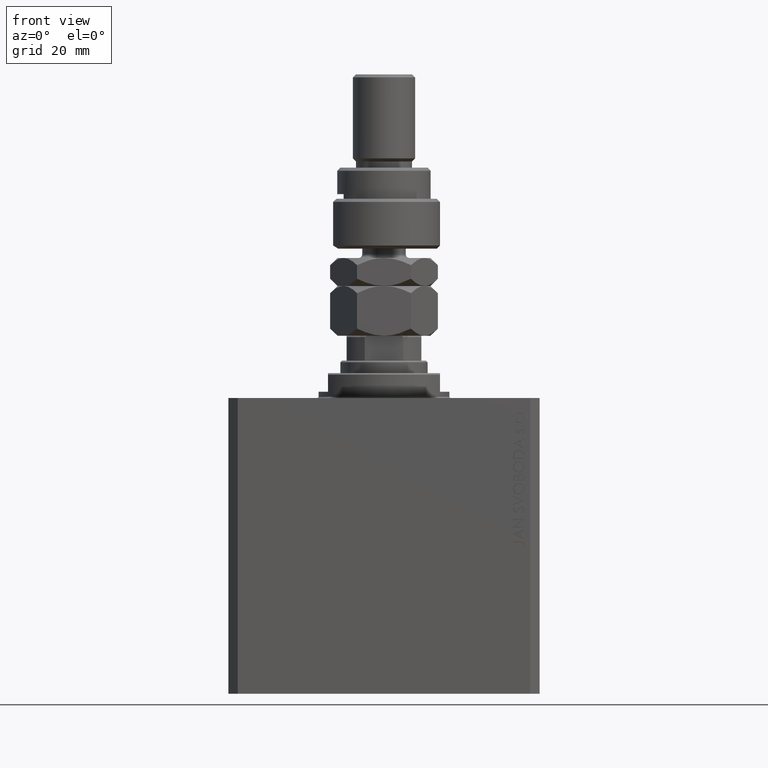
[diagram: clean part render]
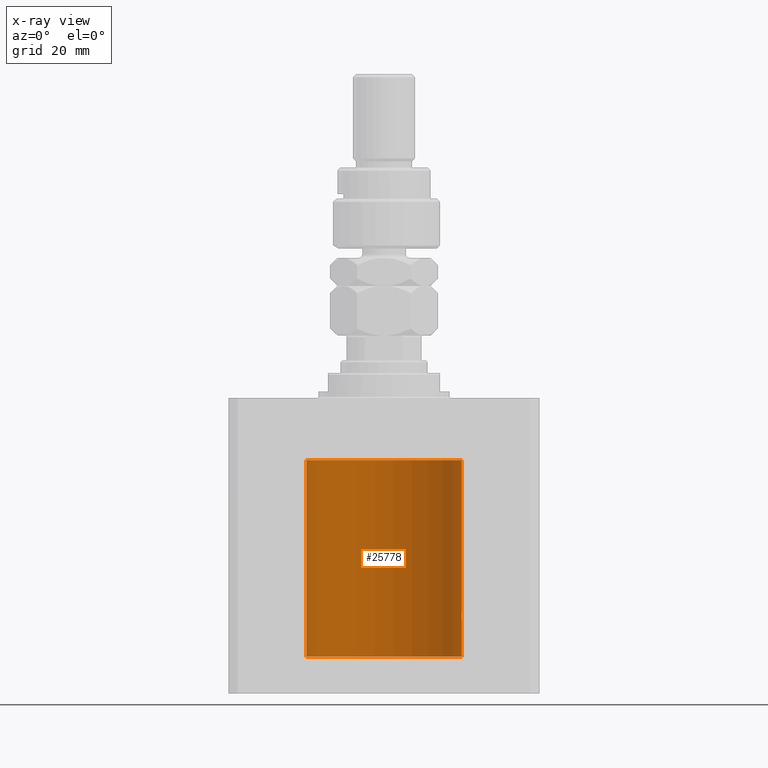
[diagram: x-ray — body ghosted, one internal face saturated and labeled with its STEP entity id]
A machine part, front view, then the same camera in x-ray: the body is ghosted and one INTERNAL B-rep face — a face not visible from any outside direction — is saturated and labeled: STEP entity #25778.
In plain terms, the highlighted cylindrical surface (partial cylindrical patch) has radius 25 mm, axis along (0, 0, 1).
Its self-contained STEP definition (entity closure, byte-faithful):
#102 = VERTEX_POINT ( 'NONE', #24053 ) ;
#200 = VERTEX_POINT ( 'NONE', #9888 ) ;
#803 = CARTESIAN_POINT ( 'NONE',  ( 24.99493190796009046, 0.5194315891213243663, -68.06421314474678752 ) ) ;
#1357 = B_SPLINE_CURVE_WITH_KNOTS ( 'NONE', 3,
 ( #19907, #5029, #34520, #1667, #1904, #41465, #16320, #30944, #27820, #45560, #30473, #34763, #16550, #41940, #31175, #9109, #5972, #23738, #45797, #27575, #20389, #42172, #15841, #42420, #46034, #12237, #9349, #8640, #38591, #9585 ),
 .UNSPECIFIED., .F., .F.,
 ( 4, 2, 2, 2, 2, 2, 2, 2, 2, 2, 2, 2, 2, 2, 4 ),
 ( 1.711460648662030874E-19, 0.0003909631133201684925, 0.0007819262266403368767, 0.001172889339960505152, 0.001563852453280673536, 0.002345778679921010305, 0.003127704906561347507, 0.003518668019881516108, 0.003909631133201684275, 0.004300594246521852876, 0.004691557359842020609, 0.005082520473162189210, 0.005473483586482357811, 0.005864446699802525545, 0.006255409813122695013 ),
 .UNSPECIFIED. ) ;
#1667 = CARTESIAN_POINT ( 'NONE',  ( -24.99496228453478608, 0.5178909248663671194, -23.06382286360416956 ) ) ;
#1684 = ORIENTED_EDGE ( 'NONE', *, *, #30728, .T. ) ;
#1904 = CARTESIAN_POINT ( 'NONE',  ( -24.99197317726958545, 0.6449463114735953795, -23.10230905830972858 ) ) ;
#2210 = DIRECTION ( 'NONE',  ( 1.000000000000000000, 0.000000000000000000, 0.000000000000000000 ) ) ;
#2492 = B_SPLINE_CURVE_WITH_KNOTS ( 'NONE', 3,
 ( #42154, #11985, #16054, #41447, #37375, #45069, #30682, #19174, #12464, #8853, #23484, #13641, #42403, #24670 ),
 .UNSPECIFIED., .F., .F.,
 ( 4, 2, 2, 2, 2, 2, 4 ),
 ( 3.511612687242254074E-18, 0.0003910529405526748294, 0.0007821058811053461894, 0.001173158821658017766, 0.001564211762210689343, 0.002346317643316032063, 0.003128423524421375217 ),
 .UNSPECIFIED. ) ;
#2680 = CARTESIAN_POINT ( 'NONE',  ( 25.00000000000000000, -1.072061970195355044E-23, -68.00000000000000000 ) ) ;
#3580 = ORIENTED_EDGE ( 'NONE', *, *, #13697, .F. ) ;
#4159 = CARTESIAN_POINT ( 'NONE',  ( 24.91987158875419794, 2.000000000000375255, -70.00000000000000000 ) ) ;
#4202 = LINE ( 'NONE', #15498, #37275 ) ;
#4636 = CARTESIAN_POINT ( 'NONE',  ( 24.92495585240437350, 1.935777409849491759, -69.48051441220840729 ) ) ;
#5029 = CARTESIAN_POINT ( 'NONE',  ( -25.00000000000000000, 0.1322014778934262891, -23.00000000000000355 ) ) ;
#5111 = CARTESIAN_POINT ( 'NONE',  ( 25.00000000000000000, 0.1305261351234896783, -67.99999999999997158 ) ) ;
#5348 = CARTESIAN_POINT ( 'NONE',  ( 25.00000000000000000, 0.000000000000000000, -20.00000000000000355 ) ) ;
#5568 = EDGE_LOOP ( 'NONE', ( #3580, #46882, #40606, #38002, #30596, #14219, #1684, #7806, #23517 ) ) ;
#5972 = CARTESIAN_POINT ( 'NONE',  ( -24.92788761901291750, 1.898142276082072089, -25.64361034516351978 ) ) ;
#6086 = CARTESIAN_POINT ( 'NONE',  ( -25.00000000000000000, -9.880247245846597702E-15, -23.00000000000000000 ) ) ;
#6375 = DIRECTION ( 'NONE',  ( 1.000000000000000000, 0.000000000000000000, 0.000000000000000000 ) ) ;
#7806 = ORIENTED_EDGE ( 'NONE', *, *, #37288, .F. ) ;
#8006 = CARTESIAN_POINT ( 'NONE',  ( 24.92790171662583276, 1.897957730269075105, -69.35585098575666052 ) ) ;
#8640 = CARTESIAN_POINT ( 'NONE',  ( -24.99894363691344168, 0.2631623743596695486, -26.98691550260398841 ) ) ;
#8853 = CARTESIAN_POINT ( 'NONE',  ( 24.94948532700468391, 1.599156973339999066, -71.22913415249136904 ) ) ;
#9109 = CARTESIAN_POINT ( 'NONE',  ( -24.92494360443313894, 1.935934657392621272, -25.51890776192067278 ) ) ;
#9349 = CARTESIAN_POINT ( 'NONE',  ( -24.99492963589240091, 0.5195477780157325975, -26.93575766978349151 ) ) ;
#9585 = CARTESIAN_POINT ( 'NONE',  ( -25.00000000000000000, 3.061616987151861079E-15, -26.99999999999999645 ) ) ;
#9888 = CARTESIAN_POINT ( 'NONE',  ( -25.00000000000000000, 3.061616997868383043E-15, -20.00000000000000355 ) ) ;
#11985 = CARTESIAN_POINT ( 'NONE',  ( 25.00000000000000355, 0.1322318523520167877, -72.00000000000002842 ) ) ;
#12237 = CARTESIAN_POINT ( 'NONE',  ( -24.99199174798888023, 0.6442364453337716679, -26.89793475977048232 ) ) ;
#12464 = CARTESIAN_POINT ( 'NONE',  ( 24.96516502151963124, 1.322522485723470531, -71.50597235110980421 ) ) ;
#13015 = FACE_OUTER_BOUND ( 'NONE', #5568, .T. ) ;
#13263 = CYLINDRICAL_SURFACE ( 'NONE', #34449, 25.00000000000000000 ) ;
#13641 = CARTESIAN_POINT ( 'NONE',  ( 24.92422785753204906, 1.947526681255389525, -70.52444535332155340 ) ) ;
#13697 = EDGE_CURVE ( 'NONE', #39475, #34195, #18807, .T. ) ;
#13817 = DIRECTION ( 'NONE',  ( -0.000000000000000000, -0.000000000000000000, 1.000000000000000000 ) ) ;
#14121 = CARTESIAN_POINT ( 'NONE',  ( -25.00000000000000000, 3.061616997868383043E-15, -83.09999999999999432 ) ) ;
#14219 = ORIENTED_EDGE ( 'NONE', *, *, #16897, .T. ) ;
#14494 = CARTESIAN_POINT ( 'NONE',  ( 25.00000000000000000, 0.000000000000000000, -83.09999999999999432 ) ) ;
#14741 = DIRECTION ( 'NONE',  ( -0.000000000000000000, -0.000000000000000000, 1.000000000000000000 ) ) ;
#15498 = CARTESIAN_POINT ( 'NONE',  ( 25.00000000000000000, 0.000000000000000000, -83.09999999999999432 ) ) ;
#15841 = CARTESIAN_POINT ( 'NONE',  ( -24.97044682385318026, 1.220055540032808805, -26.59010549084178265 ) ) ;
#16054 = CARTESIAN_POINT ( 'NONE',  ( 24.99895171050671294, 0.2622427397369110347, -71.98701522632683236 ) ) ;
#16320 = CARTESIAN_POINT ( 'NONE',  ( -24.98014837415680489, 1.002010110534174547, -23.26418383162123149 ) ) ;
#16535 = LINE ( 'NONE', #30454, #19670 ) ;
#16550 = CARTESIAN_POINT ( 'NONE',  ( -24.91987913663314558, 1.999905953907249456, -24.73827023896789967 ) ) ;
#16897 = EDGE_CURVE ( 'NONE', #25804, #26658, #16535, .T. ) ;
#16901 = EDGE_CURVE ( 'NONE', #102, #17842, #2492, .T. ) ;
#17842 = VERTEX_POINT ( 'NONE', #43825 ) ;
#18111 = VERTEX_POINT ( 'NONE', #6086 ) ;
#18765 = EDGE_CURVE ( 'NONE', #42626, #102, #4202, .T. ) ;
#18807 = LINE ( 'NONE', #23114, #42231 ) ;
#18809 = CARTESIAN_POINT ( 'NONE',  ( 24.93533359819881667, 1.797683477752171743, -69.11371245509397454 ) ) ;
#19047 = CARTESIAN_POINT ( 'NONE',  ( 24.99199530066696795, 0.6440939830361788188, -68.10201906410964057 ) ) ;
#19174 = CARTESIAN_POINT ( 'NONE',  ( 24.97046928552373046, 1.219632852334577633, -71.59046721778373978 ) ) ;
#19289 = CARTESIAN_POINT ( 'NONE',  ( 24.95467834240023919, 1.507571193169164436, -68.67914516237102873 ) ) ;
#19670 = VECTOR ( 'NONE', #31159, 1000.000000000000000 ) ;
#19907 = CARTESIAN_POINT ( 'NONE',  ( -25.00000000000000000, -9.880247245846597702E-15, -23.00000000000000000 ) ) ;
#20389 = CARTESIAN_POINT ( 'NONE',  ( -24.95466269969938011, 1.507830206157726893, -26.32056178261444046 ) ) ;
#22639 = CARTESIAN_POINT ( 'NONE',  ( 24.96525661602875701, 1.320872503675244003, -68.49244428507738292 ) ) ;
#23114 = CARTESIAN_POINT ( 'NONE',  ( -25.00000000000000000, 3.061616997868383043E-15, -83.09999999999999432 ) ) ;
#23484 = CARTESIAN_POINT ( 'NONE',  ( 24.93900639076503722, 1.748128916801924504, -71.00595645684244062 ) ) ;
#23517 = ORIENTED_EDGE ( 'NONE', *, *, #29795, .T. ) ;
#23738 = CARTESIAN_POINT ( 'NONE',  ( -24.93531696180024682, 1.797913585505315215, -25.88582454002299826 ) ) ;
#23744 = DIRECTION ( 'NONE',  ( 0.000000000000000000, 0.000000000000000000, 1.000000000000000000 ) ) ;
#24053 = CARTESIAN_POINT ( 'NONE',  ( 25.00000000000000000, 3.613683980139323145E-15, -72.00000000000001421 ) ) ;
#24420 = B_SPLINE_CURVE_WITH_KNOTS ( 'NONE', 3,
 ( #4159, #41080, #40841, #4636, #8006, #18809, #33418, #37963, #19289, #22639, #37737, #45173, #41314, #19047, #803, #26957, #5111, #30323 ),
 .UNSPECIFIED., .F., .F.,
 ( 4, 2, 2, 2, 2, 2, 2, 2, 4 ),
 ( 0.003128423524421375217, 0.003519296810509137119, 0.003910170096596899021, 0.004301043382684660923, 0.004691916668772423693, 0.005082789954860184728, 0.005473663240947946630, 0.005864536527035708532, 0.006255409813123470435 ),
 .UNSPECIFIED. ) ;
#24670 = CARTESIAN_POINT ( 'NONE',  ( 24.91987158875419794, 2.000000000000375255, -70.00000000000000000 ) ) ;
#25778 = ADVANCED_FACE ( 'NONE', ( #13015 ), #13263, .F. ) ;
#25804 = VERTEX_POINT ( 'NONE', #2680 ) ;
#26658 = VERTEX_POINT ( 'NONE', #5348 ) ;
#26957 = CARTESIAN_POINT ( 'NONE',  ( 24.99894413130754600, 0.2631018416927612402, -68.01307842488789390 ) ) ;
#27575 = CARTESIAN_POINT ( 'NONE',  ( -24.94946096189906015, 1.590491165172939647, -26.21955560407613461 ) ) ;
#27820 = CARTESIAN_POINT ( 'NONE',  ( -24.96517827869064021, 1.322271947215002852, -23.49381014772490417 ) ) ;
#29795 = EDGE_CURVE ( 'NONE', #18111, #34195, #1357, .T. ) ;
#30323 = CARTESIAN_POINT ( 'NONE',  ( 25.00000000000000000, -1.072061970195355044E-23, -68.00000000000000000 ) ) ;
#30454 = CARTESIAN_POINT ( 'NONE',  ( 25.00000000000000000, 0.000000000000000000, -83.09999999999999432 ) ) ;
#30473 = CARTESIAN_POINT ( 'NONE',  ( -24.93902394873053296, 1.747880816115506164, -23.99362802520557025 ) ) ;
#30596 = ORIENTED_EDGE ( 'NONE', *, *, #43777, .T. ) ;
#30632 = CARTESIAN_POINT ( 'NONE',  ( -25.00000000000000000, 3.061616997868383043E-15, -83.09999999999999432 ) ) ;
#30682 = CARTESIAN_POINT ( 'NONE',  ( 24.98014008684978648, 1.002218476749560327, -71.73569824284065533 ) ) ;
#30728 = EDGE_CURVE ( 'NONE', #26658, #200, #44540, .T. ) ;
#30944 = CARTESIAN_POINT ( 'NONE',  ( -24.97048098995609422, 1.219391728175664324, -23.40935049578022031 ) ) ;
#30998 = AXIS2_PLACEMENT_3D ( 'NONE', #34924, #39219, #6375 ) ;
#31159 = DIRECTION ( 'NONE',  ( -0.000000000000000000, -0.000000000000000000, 1.000000000000000000 ) ) ;
#31175 = CARTESIAN_POINT ( 'NONE',  ( -24.92092244115666944, 1.987028274514494930, -25.26234881237649432 ) ) ;
#31480 = DIRECTION ( 'NONE',  ( -0.000000000000000000, -0.000000000000000000, 1.000000000000000000 ) ) ;
#31721 = CARTESIAN_POINT ( 'NONE',  ( 0.000000000000000000, 0.000000000000000000, -83.09999999999999432 ) ) ;
#32027 = CARTESIAN_POINT ( 'NONE',  ( -25.00000000000000000, 3.061616987151861079E-15, -26.99999999999999645 ) ) ;
#33418 = CARTESIAN_POINT ( 'NONE',  ( 24.93982559358191153, 1.735040297787688646, -68.99670286233151728 ) ) ;
#34195 = VERTEX_POINT ( 'NONE', #32027 ) ;
#34211 = LINE ( 'NONE', #30632, #43815 ) ;
#34449 = AXIS2_PLACEMENT_3D ( 'NONE', #31721, #31480, #2210 ) ;
#34520 = CARTESIAN_POINT ( 'NONE',  ( -24.99895219182537787, 0.2621830013652935443, -23.01297886590101172 ) ) ;
#34763 = CARTESIAN_POINT ( 'NONE',  ( -24.92424086025528496, 1.947362422016076788, -24.47497476601984090 ) ) ;
#34924 = CARTESIAN_POINT ( 'NONE',  ( 0.000000000000000000, 0.000000000000000000, -83.09999999999999432 ) ) ;
#36856 = AXIS2_PLACEMENT_3D ( 'NONE', #37886, #23744, #38352 ) ;
#37275 = VECTOR ( 'NONE', #44491, 1000.000000000000000 ) ;
#37288 = EDGE_CURVE ( 'NONE', #18111, #200, #34211, .T. ) ;
#37375 = CARTESIAN_POINT ( 'NONE',  ( 24.99196954445030627, 0.6450912151121352966, -71.89764367645020116 ) ) ;
#37737 = CARTESIAN_POINT ( 'NONE',  ( 24.97045842037802998, 1.219816859706691625, -68.40971381657300299 ) ) ;
#37886 = CARTESIAN_POINT ( 'NONE',  ( 0.000000000000000000, 0.000000000000000000, -20.00000000000000355 ) ) ;
#37963 = CARTESIAN_POINT ( 'NONE',  ( 24.94947734723934829, 1.590234439578154468, -68.78011295253190838 ) ) ;
#38002 = ORIENTED_EDGE ( 'NONE', *, *, #16901, .T. ) ;
#38352 = DIRECTION ( 'NONE',  ( 1.000000000000000000, 0.000000000000000000, 0.000000000000000000 ) ) ;
#38591 = CARTESIAN_POINT ( 'NONE',  ( -25.00000000000001066, 0.1305561315491718666, -27.00000000000000711 ) ) ;
#39219 = DIRECTION ( 'NONE',  ( 0.000000000000000000, 0.000000000000000000, 1.000000000000000000 ) ) ;
#39475 = VERTEX_POINT ( 'NONE', #14121 ) ;
#40606 = ORIENTED_EDGE ( 'NONE', *, *, #18765, .T. ) ;
#40841 = CARTESIAN_POINT ( 'NONE',  ( 24.92092960952687264, 1.986938806757485132, -69.73699118910587913 ) ) ;
#41080 = CARTESIAN_POINT ( 'NONE',  ( 24.91987158875419439, 2.000000000000375699, -69.86952236750347822 ) ) ;
#41314 = CARTESIAN_POINT ( 'NONE',  ( 24.98457651818866765, 0.8863534138924961114, -68.20234421602243913 ) ) ;
#41447 = CARTESIAN_POINT ( 'NONE',  ( 24.99496001540385848, 0.5180074392840622322, -71.93614799461352050 ) ) ;
#41465 = CARTESIAN_POINT ( 'NONE',  ( -24.98454822070441850, 0.8871466876120172040, -23.20273613247366384 ) ) ;
#41940 = CARTESIAN_POINT ( 'NONE',  ( -24.91986783040116649, 2.000046828840892577, -25.12978542103931545 ) ) ;
#41984 = EDGE_CURVE ( 'NONE', #42626, #39475, #44780, .T. ) ;
#42154 = CARTESIAN_POINT ( 'NONE',  ( 25.00000000000000000, 3.613683980139323145E-15, -72.00000000000001421 ) ) ;
#42172 = CARTESIAN_POINT ( 'NONE',  ( -24.96524308704138662, 1.321128302361972873, -26.50733385850702817 ) ) ;
#42231 = VECTOR ( 'NONE', #14741, 1000.000000000000000 ) ;
#42403 = CARTESIAN_POINT ( 'NONE',  ( 24.91987158875419439, 2.000000000000375699, -70.26107520611000723 ) ) ;
#42420 = CARTESIAN_POINT ( 'NONE',  ( -24.98008786170526108, 1.003474227436682797, -26.73493817401089956 ) ) ;
#42626 = VERTEX_POINT ( 'NONE', #14494 ) ;
#43777 = EDGE_CURVE ( 'NONE', #17842, #25804, #24420, .T. ) ;
#43815 = VECTOR ( 'NONE', #13817, 1000.000000000000000 ) ;
#43825 = CARTESIAN_POINT ( 'NONE',  ( 24.91987158875419794, 2.000000000000375255, -70.00000000000000000 ) ) ;
#44491 = DIRECTION ( 'NONE',  ( -0.000000000000000000, -0.000000000000000000, 1.000000000000000000 ) ) ;
#44540 = CIRCLE ( 'NONE', #36856, 25.00000000000000000 ) ;
#44780 = CIRCLE ( 'NONE', #30998, 25.00000000000000000 ) ;
#45069 = CARTESIAN_POINT ( 'NONE',  ( 24.98454161695537223, 0.8873356620645981296, -71.79717267434570260 ) ) ;
#45173 = CARTESIAN_POINT ( 'NONE',  ( 24.98009620012517829, 1.003265033550135854, -68.26494305889431757 ) ) ;
#45560 = CARTESIAN_POINT ( 'NONE',  ( -24.94950203352433604, 1.598895442473012851, -23.77053781758364792 ) ) ;
#45797 = CARTESIAN_POINT ( 'NONE',  ( -24.93980871060585258, 1.735282661184229358, -26.00288189918856219 ) ) ;
#46034 = CARTESIAN_POINT ( 'NONE',  ( -24.98456984035221851, 0.8865449913022026562, -26.79756360895472156 ) ) ;
#46882 = ORIENTED_EDGE ( 'NONE', *, *, #41984, .F. ) ;